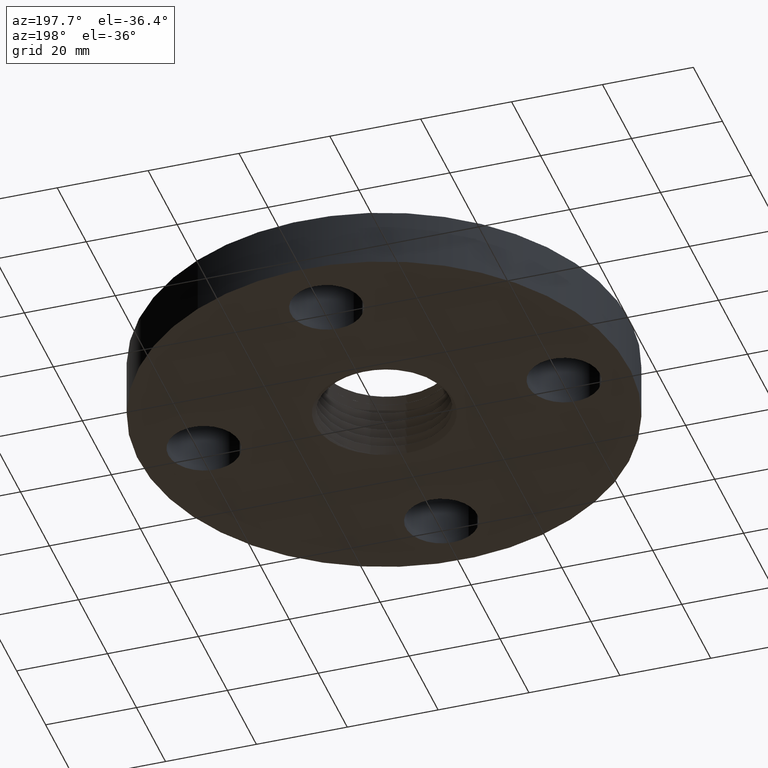
[diagram: clean part render]
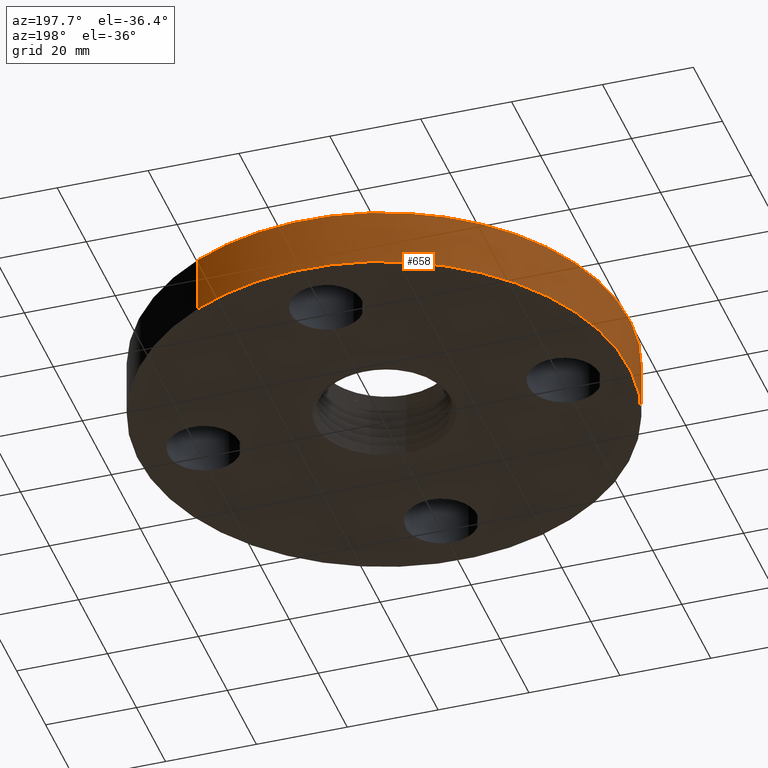
[diagram: same view with one face highlighted and labeled with its STEP entity id]
A machine part, auxiliary view. The second image highlights one B-rep face of the part: STEP entity #658.
In plain terms, the highlighted cylindrical surface (partial cylindrical patch) has radius 53.975 mm, axis along (0, 0, -1).
Its self-contained STEP definition (entity closure, byte-faithful):
#51=AXIS2_PLACEMENT_3D('Circle Axis2P3D',#49,#50,$) ;
#631=AXIS2_PLACEMENT_3D('Cylinder Axis2P3D',#628,#629,#630) ;
#642=AXIS2_PLACEMENT_3D('Circle Axis2P3D',#640,#641,$) ;
#44=CARTESIAN_POINT('Vertex',(1.01877926954,1.86486294402,2.09805925913E-016)) ;
#46=CARTESIAN_POINT('Vertex',(-1.01877926954,-1.86486294402,2.09805925913E-016)) ;
#49=CARTESIAN_POINT('Axis2P3D Location',(0.,0.,0.)) ;
#628=CARTESIAN_POINT('Axis2P3D Location',(0.,0.,0.310000000001)) ;
#633=CARTESIAN_POINT('Line Origine',(-1.01877926954,-1.86486294402,0.250000000001)) ;
#637=CARTESIAN_POINT('Vertex',(-1.01877926954,-1.86486294402,0.500000000002)) ;
#640=CARTESIAN_POINT('Axis2P3D Location',(0.,0.,0.500000000002)) ;
#644=CARTESIAN_POINT('Vertex',(1.01877926954,1.86486294402,0.500000000002)) ;
#647=CARTESIAN_POINT('Line Origine',(1.01877926954,1.86486294402,0.250000000001)) ;
#50=DIRECTION('Axis2P3D Direction',(0.,0.,-0.0393700787402)) ;
#629=DIRECTION('Axis2P3D Direction',(0.,0.,-0.0393700787402)) ;
#630=DIRECTION('Axis2P3D XDirection',(0.0188750212049,0.0345504945626,0.)) ;
#634=DIRECTION('Vector Direction',(0.,0.,-0.0393700787402)) ;
#641=DIRECTION('Axis2P3D Direction',(0.,0.,-0.0393700787402)) ;
#648=DIRECTION('Vector Direction',(0.,0.,-0.0393700787402)) ;
#635=VECTOR('Line Direction',#634,0.0393700787402) ;
#649=VECTOR('Line Direction',#648,0.0393700787402) ;
#653=ORIENTED_EDGE('',*,*,#53,.F.) ;
#654=ORIENTED_EDGE('',*,*,#639,.T.) ;
#655=ORIENTED_EDGE('',*,*,#646,.T.) ;
#656=ORIENTED_EDGE('',*,*,#651,.F.) ;
#658=ADVANCED_FACE('PartBody',(#657),#632,.T.) ;
#52=CIRCLE('generated circle',#51,2.12500000001) ;
#643=CIRCLE('generated circle',#642,2.12500000001) ;
#632=CYLINDRICAL_SURFACE('generated cylinder',#631,2.12500000001) ;
#53=EDGE_CURVE('',#47,#45,#52,.T.) ;
#639=EDGE_CURVE('',#47,#638,#636,.F.) ;
#646=EDGE_CURVE('',#638,#645,#643,.T.) ;
#651=EDGE_CURVE('',#45,#645,#650,.F.) ;
#652=EDGE_LOOP('',(#653,#654,#655,#656)) ;
#657=FACE_OUTER_BOUND('',#652,.T.) ;
#636=LINE('Line',#633,#635) ;
#650=LINE('Line',#647,#649) ;
#45=VERTEX_POINT('',#44) ;
#47=VERTEX_POINT('',#46) ;
#638=VERTEX_POINT('',#637) ;
#645=VERTEX_POINT('',#644) ;